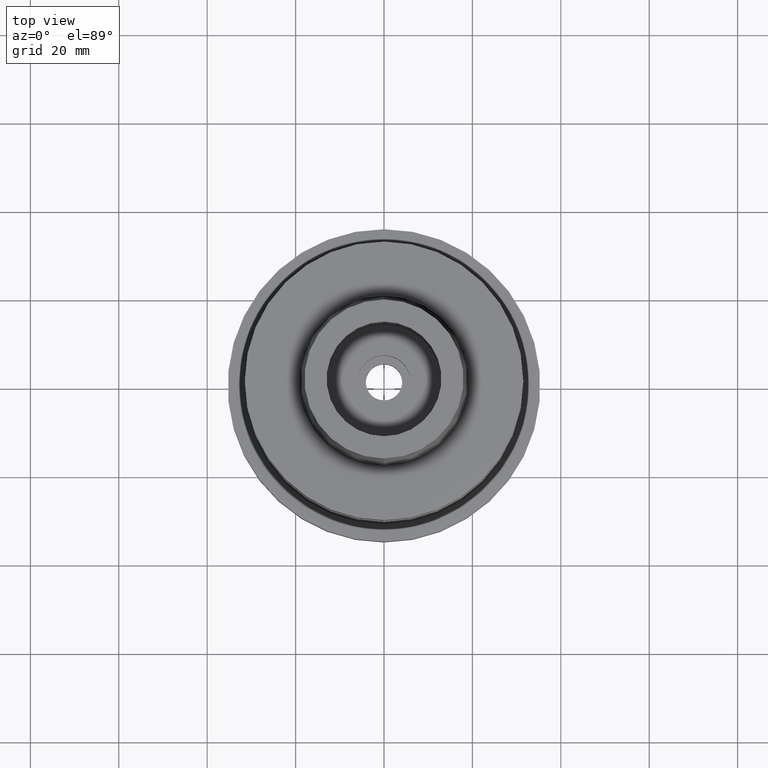
[diagram: clean part render]
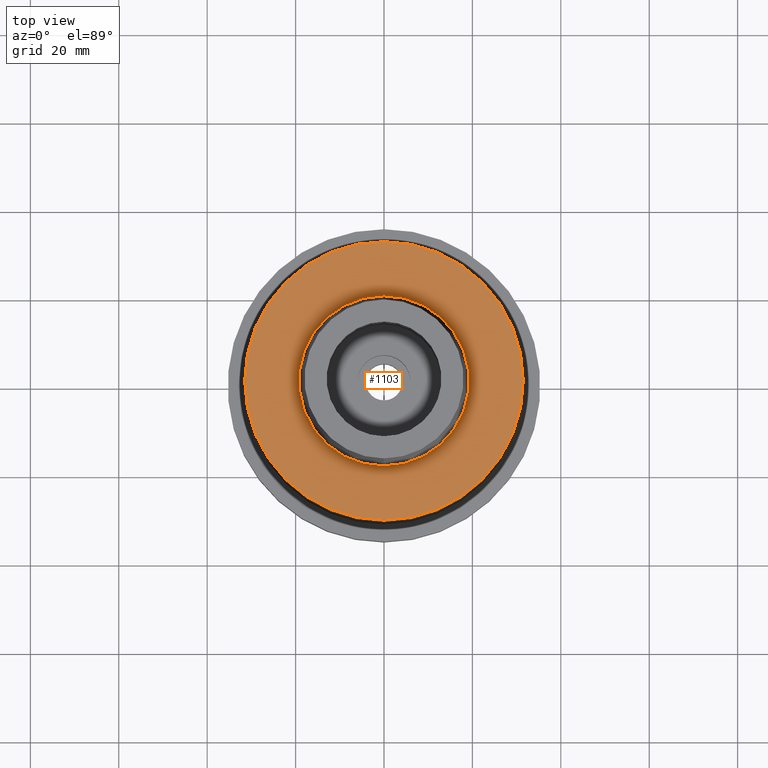
[diagram: same view with one face highlighted and labeled with its STEP entity id]
A machine part, top view. The second image highlights one B-rep face of the part: STEP entity #1103.
In plain terms, the highlighted planar face has unit normal (0, 0, 1).
Its self-contained STEP definition (entity closure, byte-faithful):
#64=CARTESIAN_POINT('',(0.E0,0.E0,3.268496584496E-13));
#65=DIRECTION('',(0.E0,0.E0,-1.E0));
#66=DIRECTION('',(0.E0,-1.E0,0.E0));
#67=AXIS2_PLACEMENT_3D('',#64,#65,#66);
#72=CARTESIAN_POINT('',(0.E0,0.E0,3.268496584496E-13));
#73=DIRECTION('',(0.E0,0.E0,-1.E0));
#74=DIRECTION('',(0.E0,1.E0,0.E0));
#75=AXIS2_PLACEMENT_3D('',#72,#73,#74);
#80=CARTESIAN_POINT('',(0.E0,0.E0,5.115907697473E-13));
#81=DIRECTION('',(0.E0,0.E0,1.E0));
#82=DIRECTION('',(0.E0,-1.E0,0.E0));
#83=AXIS2_PLACEMENT_3D('',#80,#81,#82);
#88=CARTESIAN_POINT('',(0.E0,0.E0,5.115907697473E-13));
#89=DIRECTION('',(0.E0,0.E0,1.E0));
#90=DIRECTION('',(0.E0,1.E0,0.E0));
#91=AXIS2_PLACEMENT_3D('',#88,#89,#90);
#910=CARTESIAN_POINT('',(0.E0,1.924999954280E1,3.410605131648E-13));
#911=VERTEX_POINT('',#910);
#912=CARTESIAN_POINT('',(0.E0,-1.924999954280E1,3.410605131648E-13));
#913=VERTEX_POINT('',#912);
#914=CARTESIAN_POINT('',(0.E0,-3.15E1,3.268496584496E-13));
#915=CARTESIAN_POINT('',(0.E0,3.15E1,3.268496584496E-13));
#916=VERTEX_POINT('',#914);
#917=VERTEX_POINT('',#915);
#1088=CARTESIAN_POINT('',(0.E0,0.E0,0.E0));
#1089=DIRECTION('',(0.E0,0.E0,1.E0));
#1090=DIRECTION('',(0.E0,1.E0,0.E0));
#1091=AXIS2_PLACEMENT_3D('',#1088,#1089,#1090);
#1092=PLANE('',#1091);
#1094=ORIENTED_EDGE('',*,*,#1093,.T.);
#1096=ORIENTED_EDGE('',*,*,#1095,.T.);
#1097=EDGE_LOOP('',(#1094,#1096));
#1098=FACE_OUTER_BOUND('',#1097,.F.);
#1099=ORIENTED_EDGE('',*,*,#1081,.T.);
#1100=ORIENTED_EDGE('',*,*,#1070,.T.);
#1101=EDGE_LOOP('',(#1099,#1100));
#1102=FACE_BOUND('',#1101,.F.);
#68=CIRCLE('',#67,3.15E1);
#76=CIRCLE('',#75,3.15E1);
#84=CIRCLE('',#83,1.924999954280E1);
#92=CIRCLE('',#91,1.924999954280E1);
#1070=EDGE_CURVE('',#911,#913,#92,.T.);
#1081=EDGE_CURVE('',#913,#911,#84,.T.);
#1093=EDGE_CURVE('',#916,#917,#68,.T.);
#1095=EDGE_CURVE('',#917,#916,#76,.T.);
#1103=ADVANCED_FACE('',(#1098,#1102),#1092,.T.);